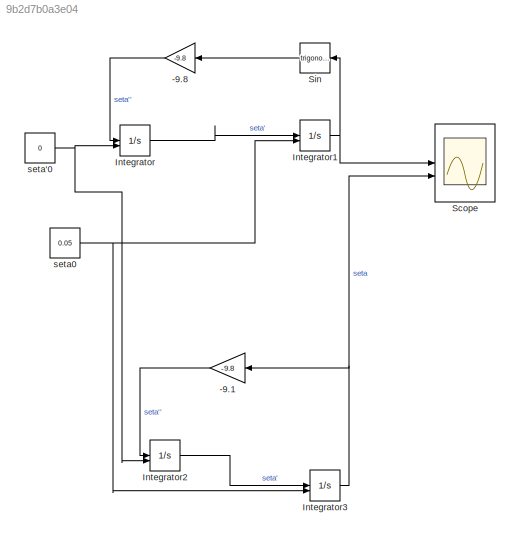
MODEL slx_9b2d7b0a3e04
KIND model
CONFIG AbsTol = auto
CONFIG EnableMultiTasking = off
CONFIG FixedStep = auto
CONFIG MaxStep = 1e-3
CONFIG MinStep = auto
CONFIG RelTol = 1e-3
CONFIG SampleTimeConstraint = Unconstrained
CONFIG SolverName = VariableStepAuto
CONFIG StartTime = 0.0
CONFIG StopTime = 10.0
BLOCK [Gain] -9.1
  Gain = -9.8
  NameLocation = top
BLOCK [Gain] -9.8
  Gain = -9.8
  NameLocation = top
BLOCK [Integrator] Integrator
  InitialConditionSource = external
BLOCK [Integrator] Integrator1
  InitialConditionSource = external
BLOCK [Integrator] Integrator2
  InitialConditionSource = external
BLOCK [Integrator] Integrator3
  InitialConditionSource = external
BLOCK [Scope] Scope
  Floating = off
  NumInputPorts = 2
  ScopeSpecificationString = Simulink.scopes.TimeScopeBlockCfg('CurrentConfiguration', extmgr.ConfigurationSet(extmgr.Configuration('Core','General UI',true),extmgr.Configuration('Core','Source UI',true),extmgr.Configuration('Sources','WiredSimulink',true),extmgr.Configuration('Visuals','Time Domain',true,'SerializedDisplays',{struct('MinYLimReal','-0.0625','MaxYLimReal','0.0625','YLabelReal','','MinYLimMag','0.00000','MaxYLi...<+2024ch>
BLOCK [Trigonometry] Sin
  NameLocation = top
BLOCK [Constant] seta'0
  Value = 0
BLOCK [Constant] seta0
  Value = 0.05
LINE -9.1:1 -> Integrator2:1
LINE -9.8:1 -> Integrator:1
NET Integrator1:1 -> Scope:1, Sin:1
LINE Integrator2:1 -> Integrator3:1
NET Integrator3:1 -> -9.1:1, Scope:2
LINE Integrator:1 -> Integrator1:1
LINE Sin:1 -> -9.8:1
NET seta'0:1 -> Integrator2:2, Integrator:2
NET seta0:1 -> Integrator1:2, Integrator3:2
note: NET lines group one-source signal fan-out (src -> all destinations, sorted); 1:1 wires keep LINE
